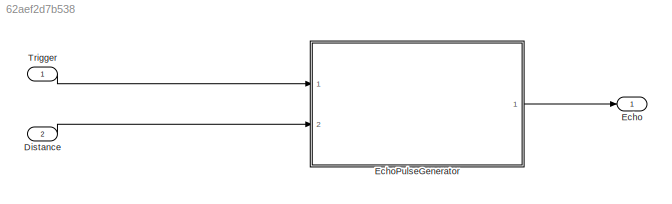
MODEL slx_62aef2d7b538
KIND model
CONFIG AbsTol = auto
CONFIG EnableMultiTasking = on
CONFIG FixedStep = auto
CONFIG MaxStep = 0.1
CONFIG MinStep = auto
CONFIG RelTol = 1e-3
CONFIG SampleTimeConstraint = Unconstrained
CONFIG SolverName = ode45
CONFIG StartTime = 0.0
CONFIG StopTime = 10.0
BLOCK [Inport] Distance
  OutDataTypeStr = double
  Port = 2
BLOCK [Outport] Echo
  OutDataTypeStr = double
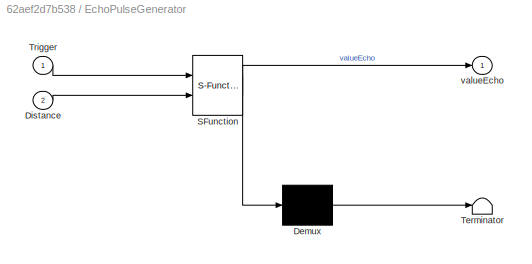
BLOCK [SubSystem] EchoPulseGenerator
  ErrorFcn = Stateflow.Translate.translate
  PermitHierarchicalResolution = ExplicitOnly
  Ports = [2, 1]
  RequestExecContextInheritance = off
  SFBlockType = Chart
  TreatAsAtomicUnit = on
BLOCK [Demux] EchoPulseGenerator/ Demux 
  Outputs = 1
  Ports = [1, 1]
BLOCK [S-Function] EchoPulseGenerator/ SFunction 
  EnableBusSupport = on
  FunctionName = sf_sfun
  PortCounts = [2 2]
  Ports = [2, 2]
  SFcnIsStateOwnerBlock = off
  SFunctionDeploymentMode = off
  Tag = Stateflow S-Function 3
BLOCK [Terminator] EchoPulseGenerator/ Terminator 
BLOCK [Inport] EchoPulseGenerator/Distance
  Port = 2
BLOCK [Inport] EchoPulseGenerator/Trigger
BLOCK [Outport] EchoPulseGenerator/valueEcho
BLOCK [Inport] Trigger
  OutDataTypeStr = boolean
LINE Distance:1 -> EchoPulseGenerator:2
LINE EchoPulseGenerator:1 -> Echo:1
LINE Trigger:1 -> EchoPulseGenerator:1
CHART EchoPulseGenerator states=8 transitions=11
  STATE_LABEL 'WAIT_TO_RISE\n'
  STATE_LABEL 'WAIT_TO_FALL\n'
  STATE_LABEL 'If no measurement is detected, the Echo signal is not generated '
  STATE_LABEL 'Wait trigger low before generating the Echo'
  STATE_LABEL 'WAIT_TRIGGER_LOW'
  STATE_LABEL 'ENABLED'
  STATE_LABEL 'HIGH\nen: valueEcho=1;'
  STATE_LABEL 'LOW\nen: valueEcho=0;'
  STATE_LABEL 'after((Distance*58),usec)'
  STATE_LABEL 'HIGH\nen: valueEcho=1;'
  STATE_LABEL 'LOW\nen: valueEcho=0;'
CHART  states=0 transitions=0
